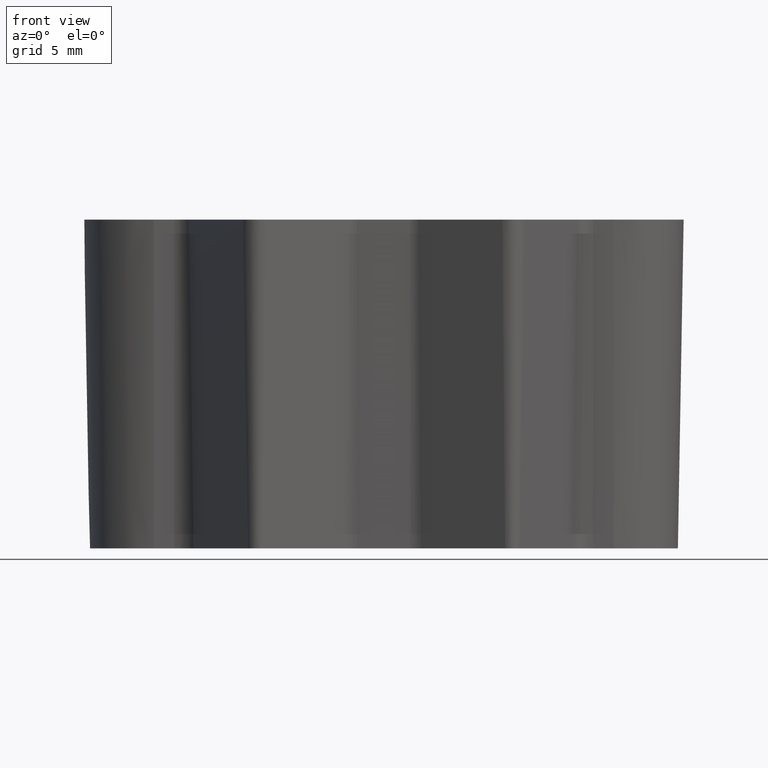
[diagram: clean part render]
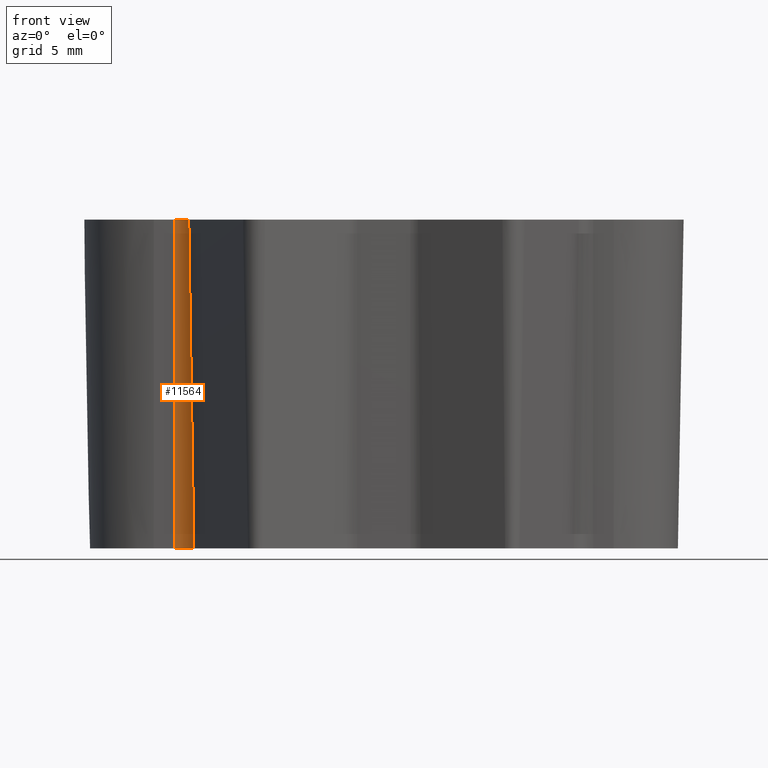
[diagram: same view with one face highlighted and labeled with its STEP entity id]
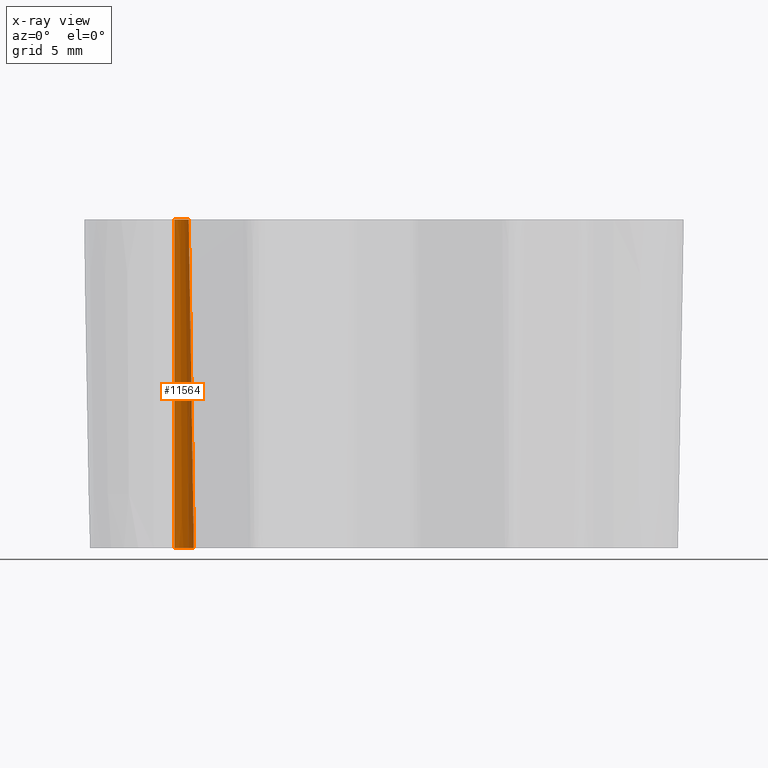
[diagram: x-ray of the same camera — body ghosted, the highlighted face saturated]
A machine part, front view. The second image highlights one B-rep face of the part: STEP entity #11564.
The next image is the same camera in x-ray: the body ghosted, the highlighted face saturated — about 0% of this face is hidden behind the body in this view.
In plain terms, the highlighted conical surface has half-angle 1 deg.
Its self-contained STEP definition (entity closure, byte-faithful):
#1547 = DIRECTION ( 'NONE',  ( 1.000000000000000000, 0.0000000000000000000, 5.916456789157591200E-031 ) ) ;
#1548 = DIRECTION ( 'NONE',  ( 5.916456789157588500E-031, 5.146084811402694200E-031, 1.000000000000000000 ) ) ;
#1549 = CARTESIAN_POINT ( 'NONE',  ( -12.74949093537945700, 27.04999999999999000, 0.0000000000000000000 ) ) ;
#1550 = AXIS2_PLACEMENT_3D ( 'NONE', #1549, #1548, #1547 ) ;
#1551 = CIRCLE ( 'NONE', #1550, 1.349101298564352200 ) ;
#1552 = CARTESIAN_POINT ( 'NONE',  ( -12.74949093537945500, 28.39910129856435000, 0.0000000000000000000 ) ) ;
#1644 = DIRECTION ( 'NONE',  ( 3.270562268189277900E-017, -0.01745240643728355000, 0.9998476951563911600 ) ) ;
#1645 = VECTOR ( 'NONE', #1644, 1000.000000000000200 ) ;
#1646 = CARTESIAN_POINT ( 'NONE',  ( -12.74949093537945500, 28.04999999999999000, 20.00000000000001800 ) ) ;
#1653 = LINE ( 'NONE', #1646, #1645 ) ;
#1718 = CARTESIAN_POINT ( 'NONE',  ( -11.55830519128921300, 27.68336469499346800, 0.0000000000000000000 ) ) ;
#2163 = CARTESIAN_POINT ( 'NONE',  ( -11.86654334252053100, 27.51947156278589200, 20.00000000000001800 ) ) ;
#2164 = DIRECTION ( 'NONE',  ( 1.000000000000000000, -1.040834085586083300E-014, 0.0000000000000000000 ) ) ;
#2165 = DIRECTION ( 'NONE',  ( -5.916456789157588500E-031, -5.146084811402694200E-031, -1.000000000000000000 ) ) ;
#2166 = CARTESIAN_POINT ( 'NONE',  ( -12.74949093537945700, 27.04999999999999000, 20.00000000000001800 ) ) ;
#2167 = AXIS2_PLACEMENT_3D ( 'NONE', #2166, #2165, #2164 ) ;
#2168 = CIRCLE ( 'NONE', #2167, 1.000000000000000900 ) ;
#2169 = CARTESIAN_POINT ( 'NONE',  ( -12.74949093537945500, 28.04999999999999000, 20.00000000000001800 ) ) ;
#4595 = DIRECTION ( 'NONE',  ( 0.01540956025339514400, 0.008193408524486061500, -0.9998476951563911600 ) ) ;
#4596 = VECTOR ( 'NONE', #4595, 1000.000000000000200 ) ;
#4597 = CARTESIAN_POINT ( 'NONE',  ( -11.86654334252053300, 27.51947156278589200, 20.00000000000001800 ) ) ;
#4598 = LINE ( 'NONE', #4597, #4596 ) ;
#11171 = EDGE_CURVE ( 'NONE', #13460, #13272, #4598, .T. ) ;
#11564 = ADVANCED_FACE ( 'NONE', ( #13610 ), #13637, .F. ) ;
#11565 = EDGE_LOOP ( 'NONE', ( #11566, #11567, #11568, #11569 ) ) ;
#11566 = ORIENTED_EDGE ( 'NONE', *, *, #13459, .F. ) ;
#11567 = ORIENTED_EDGE ( 'NONE', *, *, #13257, .F. ) ;
#11568 = ORIENTED_EDGE ( 'NONE', *, *, #13226, .F. ) ;
#11569 = ORIENTED_EDGE ( 'NONE', *, *, #11171, .F. ) ;
#13226 = EDGE_CURVE ( 'NONE', #13272, #13227, #1551, .T. ) ;
#13227 = VERTEX_POINT ( 'NONE', #1552 ) ;
#13257 = EDGE_CURVE ( 'NONE', #13227, #13457, #1653, .T. ) ;
#13272 = VERTEX_POINT ( 'NONE', #1718 ) ;
#13457 = VERTEX_POINT ( 'NONE', #2169 ) ;
#13459 = EDGE_CURVE ( 'NONE', #13457, #13460, #2168, .T. ) ;
#13460 = VERTEX_POINT ( 'NONE', #2163 ) ;
#13610 = FACE_OUTER_BOUND ( 'NONE', #11565, .T. ) ;
#13634 = DIRECTION ( 'NONE',  ( 1.000000000000000000, 0.0000000000000000000, 0.0000000000000000000 ) ) ;
#13635 = DIRECTION ( 'NONE',  ( -5.916456789157588500E-031, -5.146084811402694200E-031, -1.000000000000000000 ) ) ;
#13636 = CARTESIAN_POINT ( 'NONE',  ( -12.74949093537945700, 27.04999999999999000, 20.00000000000001800 ) ) ;
#13637 = CONICAL_SURFACE ( 'NONE', #13638, 1.000000000000000900, 0.01745329251994333400 ) ;
#13638 = AXIS2_PLACEMENT_3D ( 'NONE', #13636, #13635, #13634 ) ;